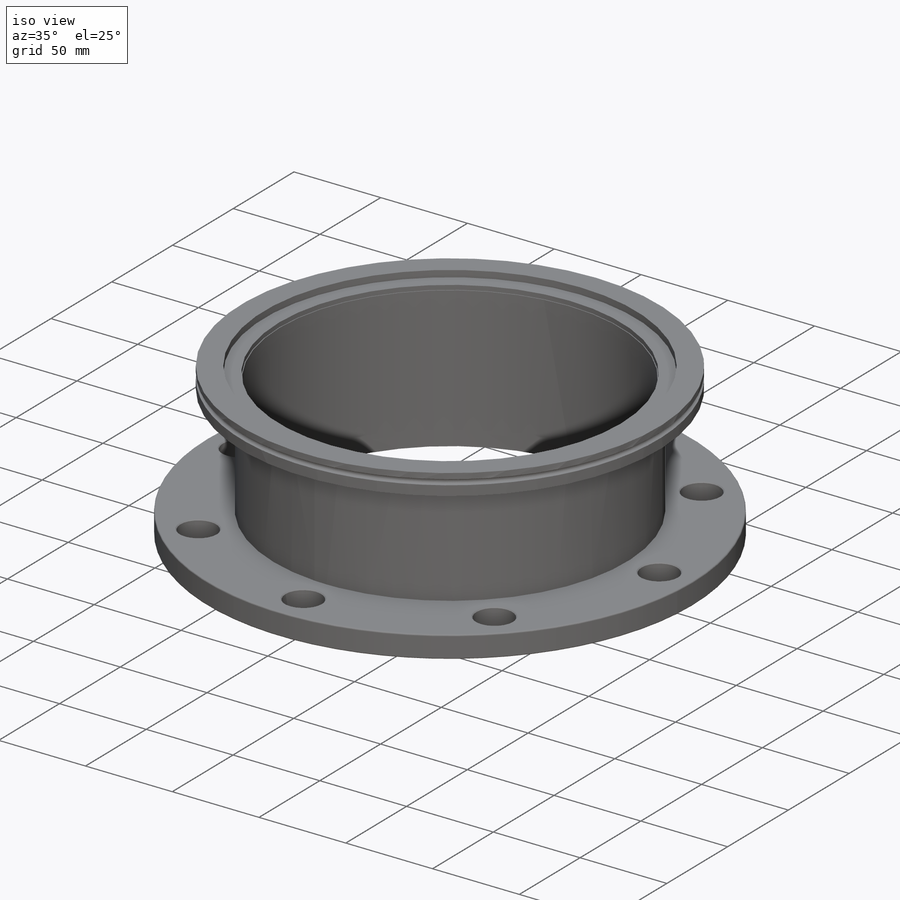
[diagram: iso view]
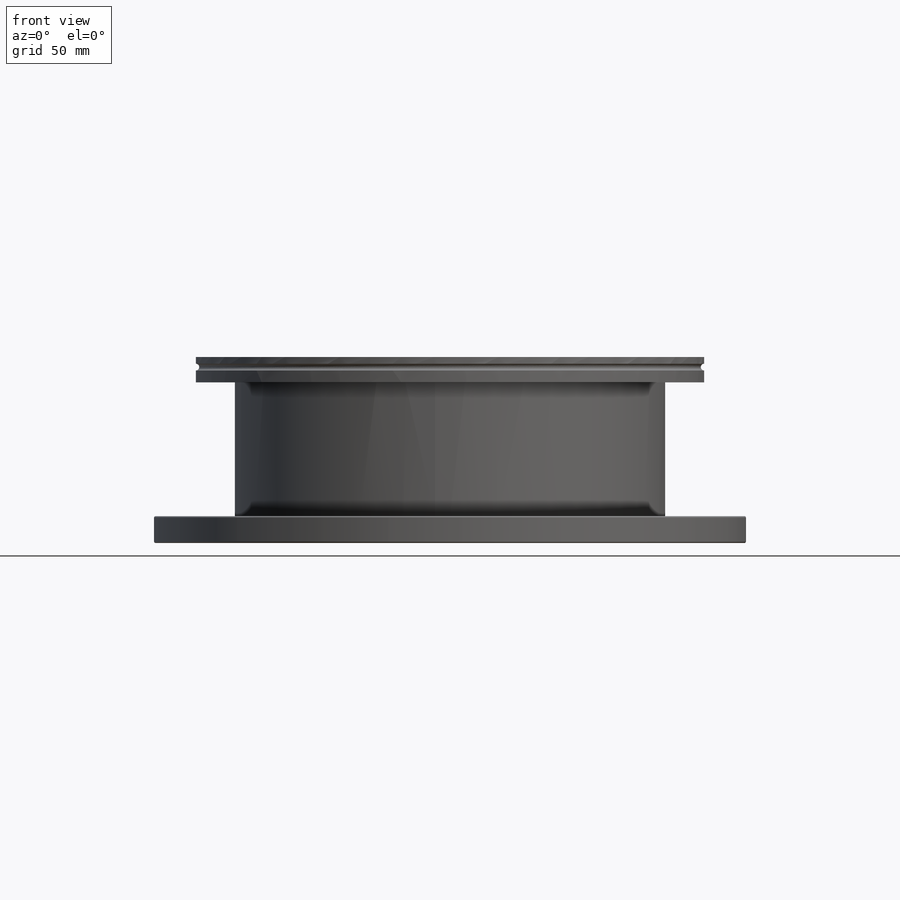
[diagram: front view]
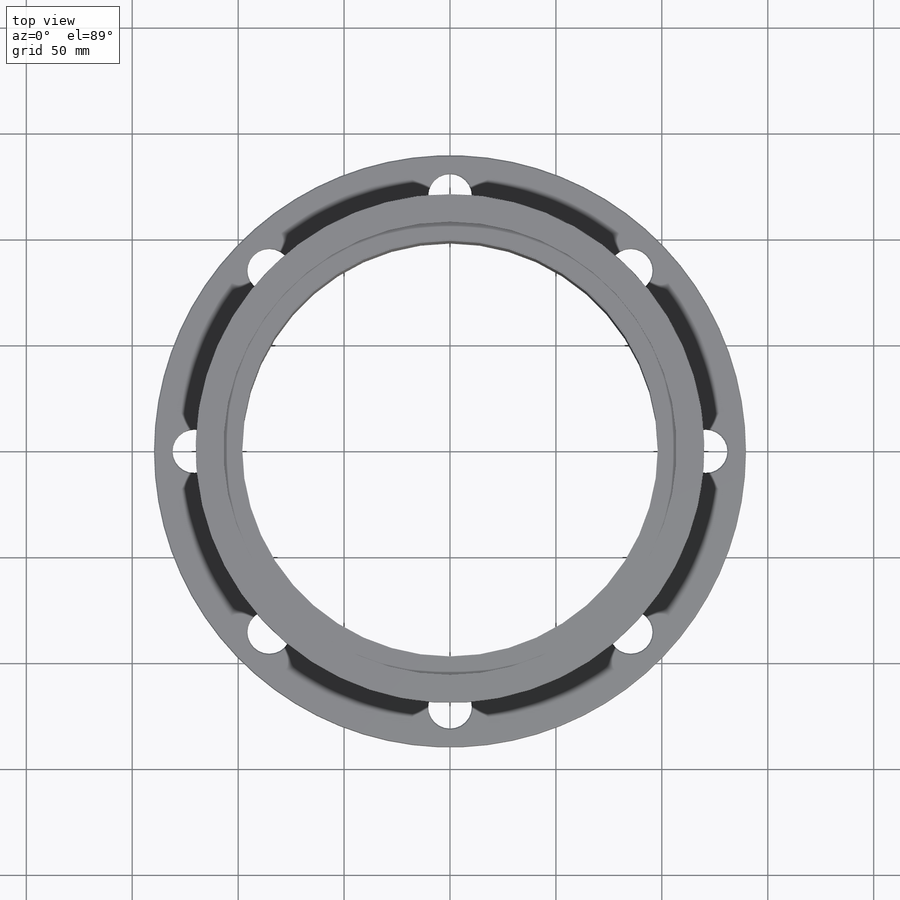
[diagram: top view]
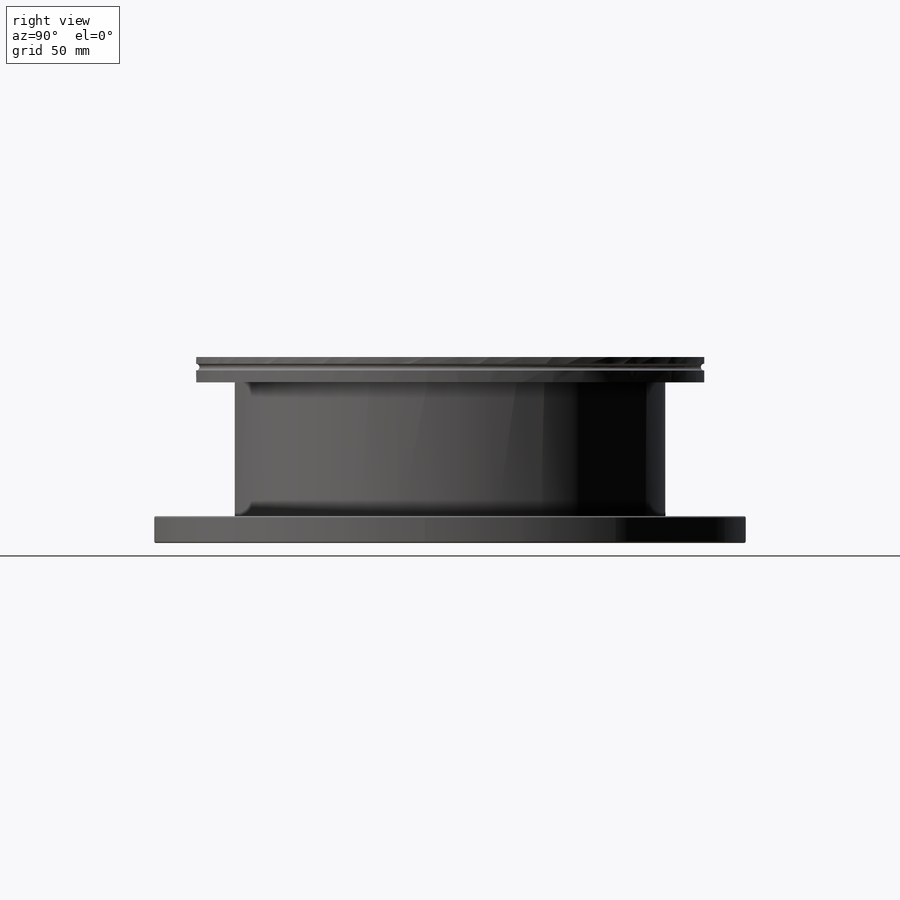
[diagram: right view]
SOLIDWORKS PART (.sldprt)
format: sldprt  version: not decoded by parser v0  size: 516,608 bytes
history: native  units: mm
features: sketch x8, cut_extrude x5, revolve x2, material x1, plane x1, chamfer x1, pattern_circular x1, fillet x1 (+14 scaffold rows collapsed)
feature tree (34):
  scaffold x14  (default folders/planes/origin — collapsed)
  material  "AISI 304"
  sketch  "Sketch1"  dims[c1.D1=3.175mm c1.Flange OD=130.0mm c1.Lip OD=235.0mm c1.Lip ID=225.0mm c1.Centering Ring Groove OD=70.0mm c1.D6=57.2mm c1.Flange Thickness=12.0mm c1.D8=3.8mm c1.D9=2.0mm c1.D10=3.175mm c1.Centering Ring Groove Width=6.35mm c1.D2=3.8mm c1.D3=3.8mm c1.D4=3.8mm c2.D3=3.8mm c2.D4=3.8mm c3.D3=3.8mm c3.D4=3.8mm c4.D3=3.8mm c4.D4=3.8mm c5.D3=3.8mm c5.D4=3.8mm c6.D3=3.8mm c6.D8=3.8mm c6.D2=2.5mm c7.D3=5.0mm c7.D4=13.0mm c7.D1=12.7mm c7.ASA OD=279.4mm]
  revolve  "ASA Flange"  Angle=360deg
  sketch  "Sketch2"  dims[D1=203.2mm]
  cut_extrude  "ASA Weld Socket"  Depth=5.588mm
  sketch  "Sketch3"  dims[Throat Dia=197.0mm]
  cut_extrude  "ASA Throat"  [1 undecoded]
  sketch  "Sketch4"  dims[D1=2.0mm D2=2.5mm D3=5.0mm D4=13.0mm D5=3.8mm D6=3.175mm D7=3.175mm od=240.0mm D9=12.0mm height=~87.801191mm]
  revolve  "LF Flange"  Angle=360deg
  sketch  "Sketch5"  dims[dOne=203.2mm]
  cut_extrude  "LF Weld Socket"  Depth=5.588mm
  sketch  "Sketch6"  dims[throat dia=197.0mm]
  cut_extrude  "LF Throat"  [1 undecoded]
  sketch  "Sketch7"  dims[c1.D1=10.0mm c2.D1=360.0deg c2.D3=3.5mm c2.D4=10.0mm c2.D7=0.0mm]
  plane  "Plane2"  Offset=2mm
  sketch  "Sketch8"  dims[Bolt Bore Diam=20.6248mm Center To Bolt=120.65mm]
  cut_extrude  "ASA Bolt Bore"  [1 undecoded]
  chamfer  "Chamfer1"  Distance=0.508mm Angle=45deg
  pattern_circular  "ASA Bolt Pattern"  Count=8 Angle=90deg
  fillet  "Fillet1"  Radius=0.762mm
decode coverage: 15 of 18 modeling features carry decoded parameters
note: ~ marks probable driven/reference dimensions
note: 3 parameter values undecoded
summary: no parameter record found for 3 features
note: suppression state not decoded; provenance and decode notes live in map.json
